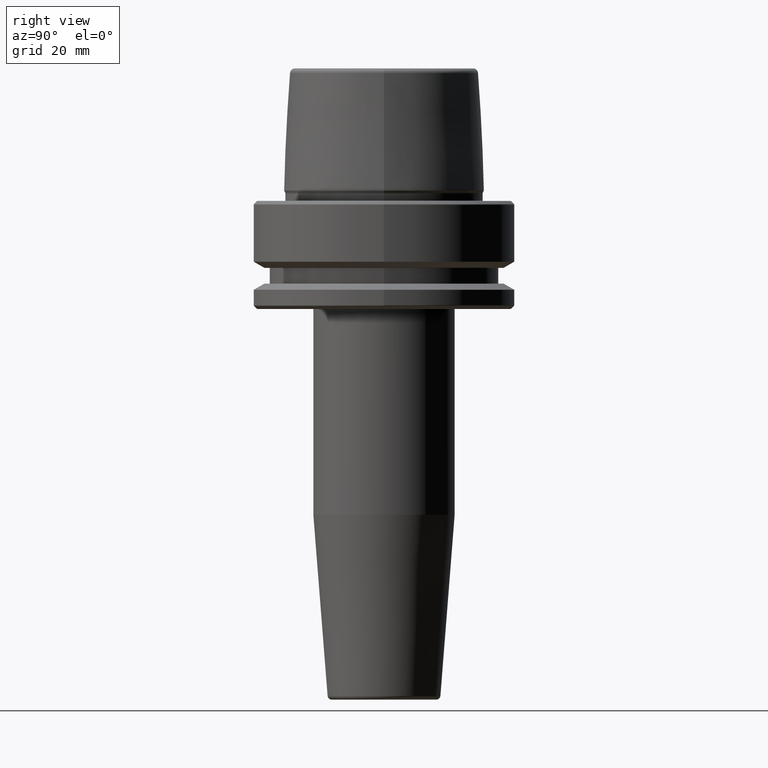
[diagram: clean part render]
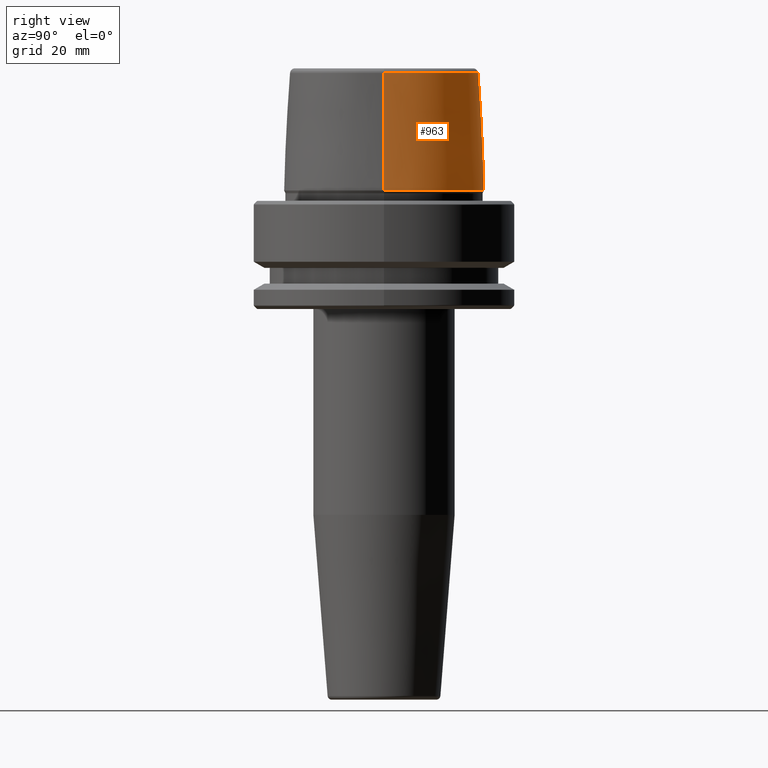
[diagram: same view with one face highlighted and labeled with its STEP entity id]
A machine part, right view. The second image highlights one B-rep face of the part: STEP entity #963.
In plain terms, the highlighted conical surface has half-angle 2.868 deg.
Its self-contained STEP definition (entity closure, byte-faithful):
#45 = AXIS2_PLACEMENT_3D ( 'NONE', #714, #130, #799 ) ;
#53 = CARTESIAN_POINT ( 'NONE',  ( -24.19537568275369200, 2.963078938405201500E-015, 2.500000000000002200 ) ) ;
#86 = CARTESIAN_POINT ( 'NONE',  ( -24.19537568275369200, 0.0000000000000000000, 2.500000000000002200 ) ) ;
#95 = LINE ( 'NONE', #132, #971 ) ;
#105 = CARTESIAN_POINT ( 'NONE',  ( 22.77957961851797100, 2.876386432489616700E-015, 30.76004333261571900 ) ) ;
#128 = VERTEX_POINT ( 'NONE', #341 ) ;
#130 = DIRECTION ( 'NONE',  ( -0.0000000000000000000, -0.0000000000000000000, 1.000000000000000000 ) ) ;
#132 = CARTESIAN_POINT ( 'NONE',  ( 24.19537568275369200, 2.963078938405201500E-015, 2.500000000000002200 ) ) ;
#224 = ORIENTED_EDGE ( 'NONE', *, *, #757, .T. ) ;
#242 = CONICAL_SURFACE ( 'NONE', #930, 24.19537568275369200, 0.05005701257455997400 ) ;
#255 = ORIENTED_EDGE ( 'NONE', *, *, #612, .F. ) ;
#258 = ORIENTED_EDGE ( 'NONE', *, *, #545, .F. ) ;
#341 = CARTESIAN_POINT ( 'NONE',  ( 24.19537568275369200, 0.0000000000000000000, 2.500000000000002200 ) ) ;
#342 = FACE_OUTER_BOUND ( 'NONE', #635, .T. ) ;
#380 = AXIS2_PLACEMENT_3D ( 'NONE', #526, #1202, #628 ) ;
#415 = VECTOR ( 'NONE', #1061, 1000.000000000000200 ) ;
#441 = EDGE_CURVE ( 'NONE', #128, #710, #650, .T. ) ;
#526 = CARTESIAN_POINT ( 'NONE',  ( 0.0000000000000000000, 0.0000000000000000000, 2.500000000000002200 ) ) ;
#545 = EDGE_CURVE ( 'NONE', #1132, #710, #591, .T. ) ;
#591 = LINE ( 'NONE', #86, #415 ) ;
#612 = EDGE_CURVE ( 'NONE', #1005, #1132, #1039, .T. ) ;
#628 = DIRECTION ( 'NONE',  ( 1.000000000000000000, 0.0000000000000000000, 0.0000000000000000000 ) ) ;
#635 = EDGE_LOOP ( 'NONE', ( #255, #224, #1129, #258 ) ) ;
#636 = CARTESIAN_POINT ( 'NONE',  ( -22.77957961851797100, 0.0000000000000000000, 30.76004333261571900 ) ) ;
#650 = CIRCLE ( 'NONE', #380, 24.19537568275369200 ) ;
#684 = DIRECTION ( 'NONE',  ( 0.0000000000000000000, 0.0000000000000000000, -1.000000000000000000 ) ) ;
#710 = VERTEX_POINT ( 'NONE', #53 ) ;
#714 = CARTESIAN_POINT ( 'NONE',  ( 0.0000000000000000000, 0.0000000000000000000, 30.76004333261571900 ) ) ;
#757 = EDGE_CURVE ( 'NONE', #1005, #128, #95, .T. ) ;
#773 = DIRECTION ( 'NONE',  ( -1.000000000000000000, 0.0000000000000000000, 0.0000000000000000000 ) ) ;
#799 = DIRECTION ( 'NONE',  ( 1.000000000000000000, 0.0000000000000000000, 0.0000000000000000000 ) ) ;
#803 = DIRECTION ( 'NONE',  ( 0.05003611051310804400, 6.127656258166099700E-018, -0.9987474093306675200 ) ) ;
#930 = AXIS2_PLACEMENT_3D ( 'NONE', #1169, #684, #773 ) ;
#963 = ADVANCED_FACE ( 'NONE', ( #342 ), #242, .T. ) ;
#971 = VECTOR ( 'NONE', #803, 1000.000000000000200 ) ;
#1005 = VERTEX_POINT ( 'NONE', #105 ) ;
#1039 = CIRCLE ( 'NONE', #45, 22.77957961851797100 ) ;
#1061 = DIRECTION ( 'NONE',  ( -0.05003611051310804400, 0.0000000000000000000, -0.9987474093306675200 ) ) ;
#1129 = ORIENTED_EDGE ( 'NONE', *, *, #441, .T. ) ;
#1132 = VERTEX_POINT ( 'NONE', #636 ) ;
#1169 = CARTESIAN_POINT ( 'NONE',  ( 0.0000000000000000000, 0.0000000000000000000, 2.500000000000002200 ) ) ;
#1202 = DIRECTION ( 'NONE',  ( -0.0000000000000000000, -0.0000000000000000000, 1.000000000000000000 ) ) ;